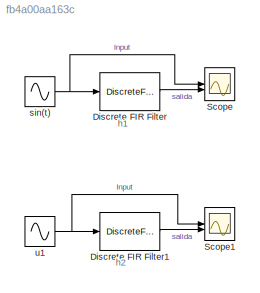
MODEL slx_fb4a00aa163c
KIND model
CONFIG AbsTol = auto
CONFIG EnableMultiTasking = off
CONFIG FixedStep = auto
CONFIG MaxStep = auto
CONFIG MinStep = auto
CONFIG RelTol = 1e-3
CONFIG SampleTimeConstraint = Unconstrained
CONFIG SolverName = VariableStepAuto
CONFIG StartTime = 0.0
CONFIG StopTime = 2
BLOCK [DiscreteFir] Discrete FIR Filter
  Coefficients = h1
  InputPortMap = u0
  OutputPortMap = o0
  SampleTime = 1/250
BLOCK [DiscreteFir] Discrete FIR Filter1
  Coefficients = h2
  InputPortMap = u0
  OutputPortMap = o0
  SampleTime = 1/250
BLOCK [Scope] Scope
  Floating = off
  NumInputPorts = 2
  ScopeSpecificationString = Simulink.scopes.TimeScopeBlockCfg('CurrentConfiguration', extmgr.ConfigurationSet(extmgr.Configuration('Core','General UI',true,'FigureColor',[1 1 1]),extmgr.Configuration('Core','Source UI',true),extmgr.Configuration('Sources','WiredSimulink',true),extmgr.Configuration('Visuals','Time Domain',true,'PlotType','Line','SerializedDisplays',{struct('MinYLimReal','-1.24753','MaxYLimReal','1.24753','YLa...<+2631ch>
BLOCK [Scope] Scope1
  Floating = off
  NumInputPorts = 2
  ScopeSpecificationString = Simulink.scopes.TimeScopeBlockCfg('CurrentConfiguration', extmgr.ConfigurationSet(extmgr.Configuration('Core','General UI',true,'FigureColor',[1 1 1]),extmgr.Configuration('Core','Source UI',true),extmgr.Configuration('Sources','WiredSimulink',true,'DataLoggingVariableName','ScopeData1'),extmgr.Configuration('Visuals','Time Domain',true,'SerializedDisplays',{struct('MinYLimReal','-1.2499','MaxYLim...<+2629ch>
BLOCK [Sin] sin(t)
  Frequency = 80*2*pi
  SampleTime = 1/250
BLOCK [Sin] u1
  Frequency = 9*2*pi
  SampleTime = 1/250
ANNOTATION (root): h1
ANNOTATION (root): h2
LINE Discrete FIR Filter1:1 -> Scope1:2
LINE Discrete FIR Filter:1 -> Scope:2
NET sin(t):1 -> Discrete FIR Filter:1, Scope:1
NET u1:1 -> Discrete FIR Filter1:1, Scope1:1
note: NET lines group one-source signal fan-out (src -> all destinations, sorted); 1:1 wires keep LINE
